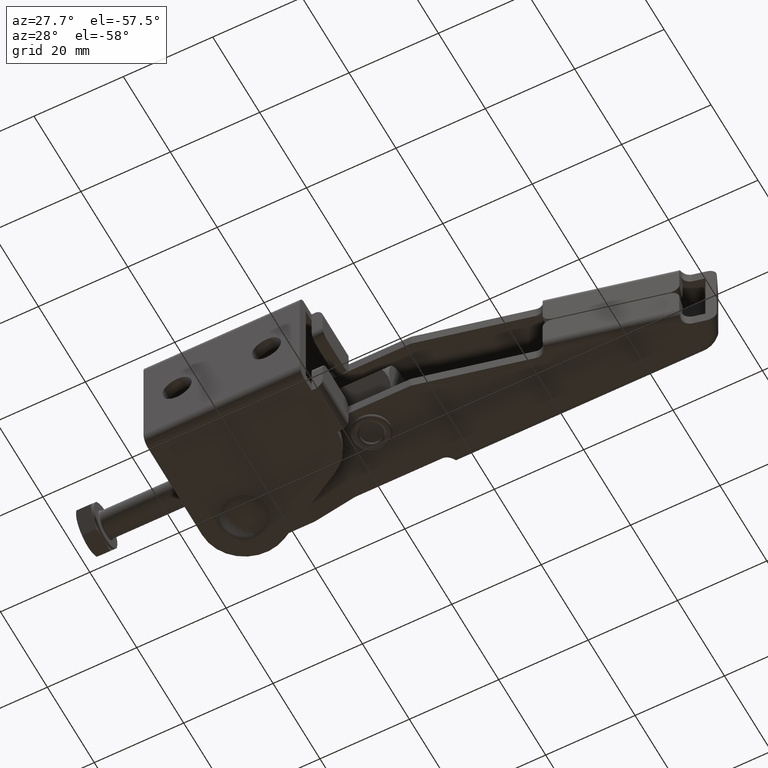
[diagram: clean part render]
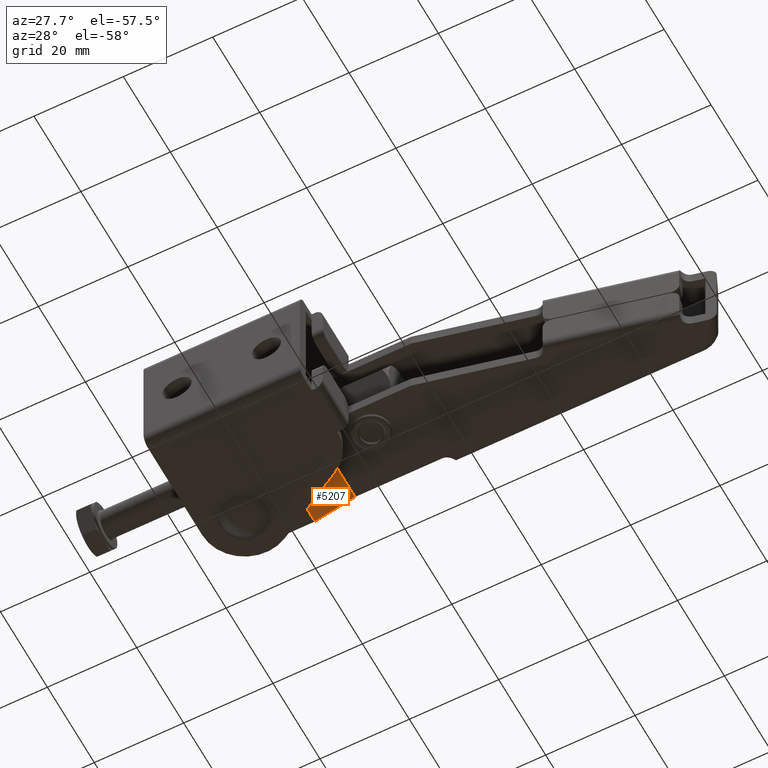
[diagram: same view with one face highlighted and labeled with its STEP entity id]
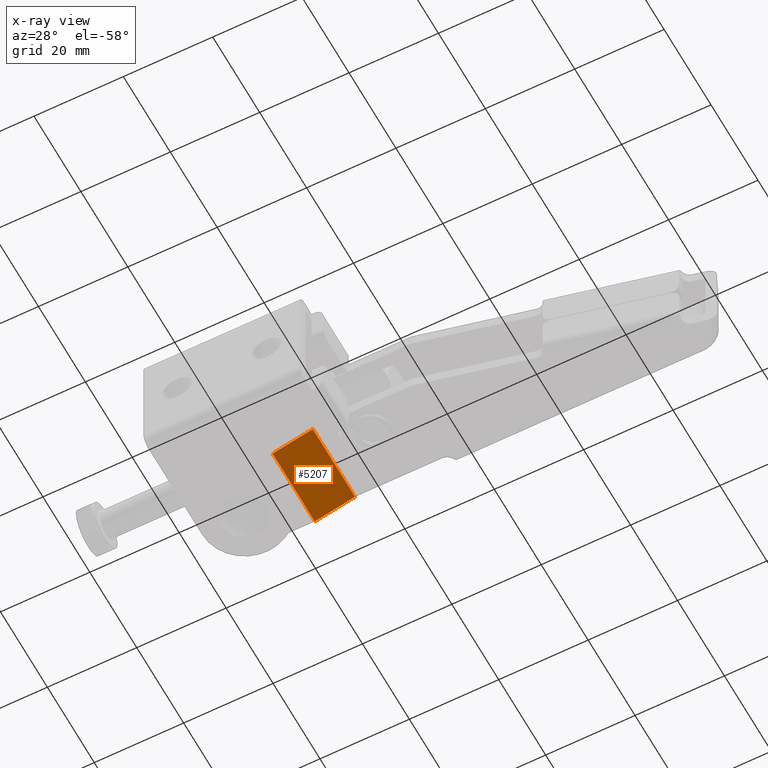
[diagram: x-ray of the same camera — body ghosted, the highlighted face saturated]
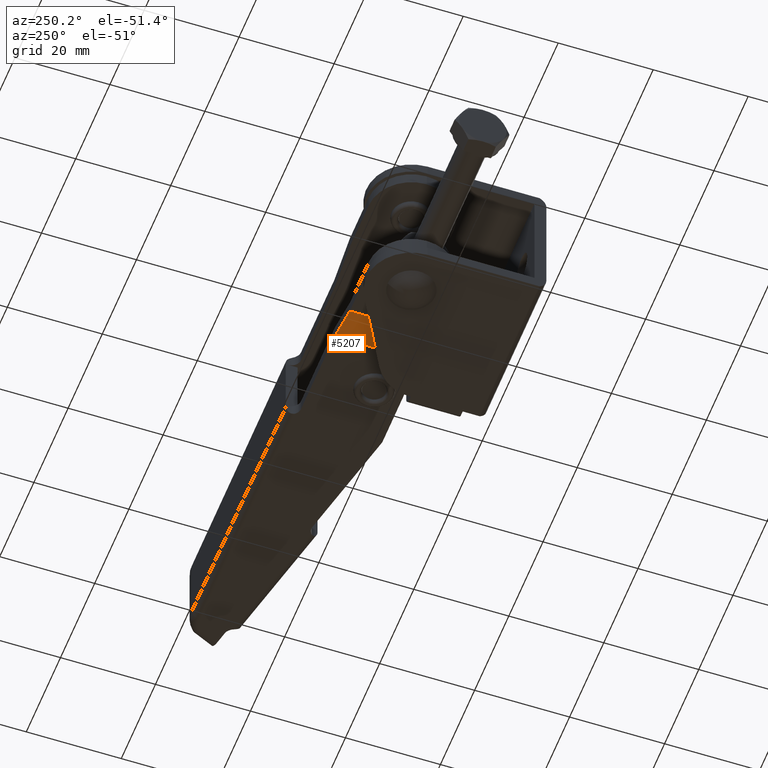
[diagram: same view with one face highlighted and labeled with its STEP entity id]
A machine part, auxiliary view. The second image highlights one B-rep face of the part: STEP entity #5207.
The next image is the same camera in x-ray: the body ghosted, the highlighted face saturated — about 0% of this face is hidden behind the body in this view.
A second angle (auxiliary view) of the same face is appended — the face is thin or edge-on in the first view.
In plain terms, the highlighted planar face has unit normal (0.2676, 0, -0.9635).
Its self-contained STEP definition (entity closure, byte-faithful):
#81 = CARTESIAN_POINT ( 'NONE',  ( 2.999999999999999100, 15.99999999999999600, -11.49999999999999600 ) ) ;
#450 = CARTESIAN_POINT ( 'NONE',  ( 11.99999999999999600, 15.99999999999999600, -8.999999999999998200 ) ) ;
#550 = VECTOR ( 'NONE', #2238, 1000.000000000000000 ) ;
#1238 = DIRECTION ( 'NONE',  ( -0.9635179096299406600, 0.0000000000000000000, -0.2676438637860945000 ) ) ;
#1340 = DIRECTION ( 'NONE',  ( -0.9635179096299406600, 0.0000000000000000000, -0.2676438637860945000 ) ) ;
#1638 = CARTESIAN_POINT ( 'NONE',  ( 11.99999999999999600, 34.00000000024999700, -8.999999999999998200 ) ) ;
#1668 = EDGE_CURVE ( 'NONE', #4439, #2689, #6192, .T. ) ;
#1954 = ORIENTED_EDGE ( 'NONE', *, *, #4187, .T. ) ;
#2238 = DIRECTION ( 'NONE',  ( 0.0000000000000000000, 1.000000000000000000, 0.0000000000000000000 ) ) ;
#2265 = CARTESIAN_POINT ( 'NONE',  ( 3.000000000000002700, 33.99999999999999300, -11.49999999999999600 ) ) ;
#2545 = LINE ( 'NONE', #4607, #3489 ) ;
#2672 = ORIENTED_EDGE ( 'NONE', *, *, #7041, .T. ) ;
#2689 = VERTEX_POINT ( 'NONE', #1638 ) ;
#2829 = CARTESIAN_POINT ( 'NONE',  ( 2.999999999999999100, 24.99999999999999600, -11.49999999999999600 ) ) ;
#2867 = LINE ( 'NONE', #2829, #7039 ) ;
#2902 = ORIENTED_EDGE ( 'NONE', *, *, #5961, .T. ) ;
#3413 = CARTESIAN_POINT ( 'NONE',  ( 12.00000000000000000, 15.99999999999999600, -8.999999999999998200 ) ) ;
#3467 = VERTEX_POINT ( 'NONE', #81 ) ;
#3489 = VECTOR ( 'NONE', #1340, 1000.000000000000100 ) ;
#3945 = DIRECTION ( 'NONE',  ( 0.0000000000000000000, 1.000000000000000000, 0.0000000000000000000 ) ) ;
#3963 = PLANE ( 'NONE',  #5987 ) ;
#4056 = CARTESIAN_POINT ( 'NONE',  ( 12.00000000000000000, 33.99999999999998600, -8.999999999999998200 ) ) ;
#4070 = FACE_OUTER_BOUND ( 'NONE', #4891, .T. ) ;
#4187 = EDGE_CURVE ( 'NONE', #5642, #2689, #5913, .T. ) ;
#4439 = VERTEX_POINT ( 'NONE', #450 ) ;
#4507 = DIRECTION ( 'NONE',  ( 0.2676438637860945000, 0.0000000000000000000, -0.9635179096299406600 ) ) ;
#4607 = CARTESIAN_POINT ( 'NONE',  ( 12.00000000000000000, 15.99999999999999600, -8.999999999999998200 ) ) ;
#4891 = EDGE_LOOP ( 'NONE', ( #2672, #2902, #1954, #6522 ) ) ;
#5207 = ADVANCED_FACE ( 'NONE', ( #4070 ), #3963, .T. ) ;
#5642 = VERTEX_POINT ( 'NONE', #2265 ) ;
#5738 = VECTOR ( 'NONE', #6226, 1000.000000000000100 ) ;
#5913 = LINE ( 'NONE', #4056, #5738 ) ;
#5961 = EDGE_CURVE ( 'NONE', #3467, #5642, #2867, .T. ) ;
#5987 = AXIS2_PLACEMENT_3D ( 'NONE', #3413, #4507, #1238 ) ;
#6045 = CARTESIAN_POINT ( 'NONE',  ( 12.00000000000000000, 25.24999999999999600, -8.999999999999998200 ) ) ;
#6192 = LINE ( 'NONE', #6045, #550 ) ;
#6226 = DIRECTION ( 'NONE',  ( 0.9635179096299406600, -0.0000000000000000000, 0.2676438637860945000 ) ) ;
#6522 = ORIENTED_EDGE ( 'NONE', *, *, #1668, .F. ) ;
#7039 = VECTOR ( 'NONE', #3945, 1000.000000000000000 ) ;
#7041 = EDGE_CURVE ( 'NONE', #4439, #3467, #2545, .T. ) ;